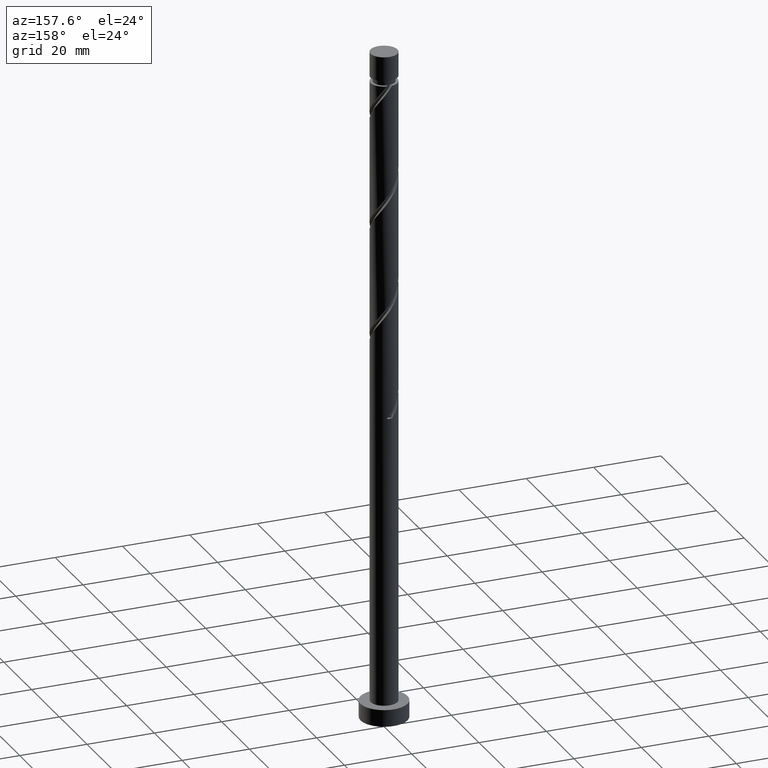
[diagram: clean part render]
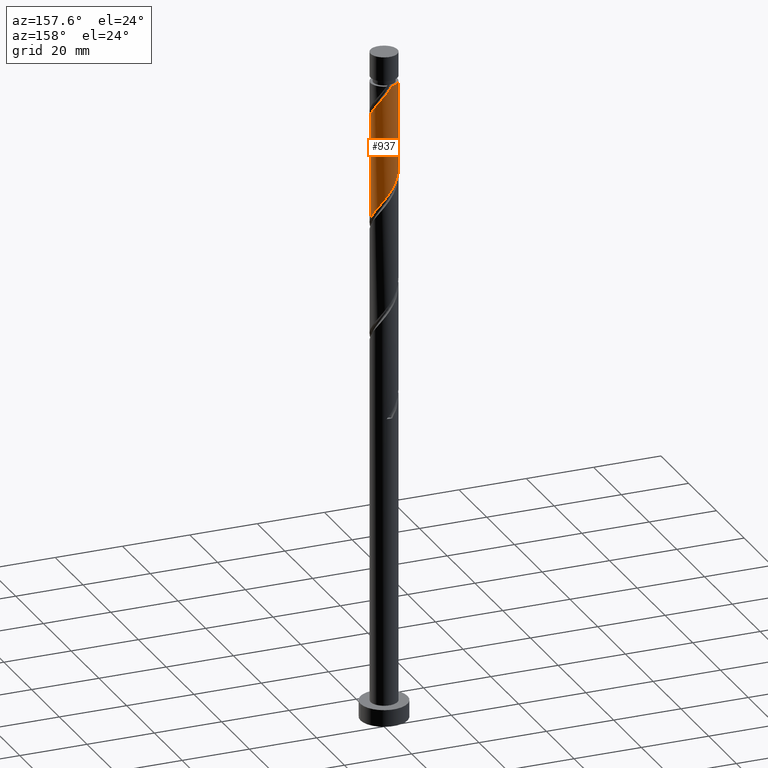
[diagram: same view with one face highlighted and labeled with its STEP entity id]
A machine part, auxiliary view. The second image highlights one B-rep face of the part: STEP entity #937.
In plain terms, the highlighted cylindrical surface (edge-blend (fillet) strip) has radius 4 mm, axis along (-0, -0, -1).
Its self-contained STEP definition (entity closure, byte-faithful):
#31 = CARTESIAN_POINT ( 'NONE',  ( -3.345617825659326083, 2.254808073111003619, 164.1163400501632736 ) ) ;
#39 = CARTESIAN_POINT ( 'NONE',  ( 0.7959899496852983480, 3.919999999999999929, 157.8663400501632168 ) ) ;
#46 = VECTOR ( 'NONE', #850, 1000.000000000000000 ) ;
#66 = CARTESIAN_POINT ( 'NONE',  ( 2.648031390325383150, 3.043886962058127477, 186.3385622723854453 ) ) ;
#93 = ORIENTED_EDGE ( 'NONE', *, *, #1147, .T. ) ;
#135 = VERTEX_POINT ( 'NONE', #1382 ) ;
#145 = CARTESIAN_POINT ( 'NONE',  ( 3.580411880364402499, 1.783437906669447015, 184.2552289390521878 ) ) ;
#175 = CARTESIAN_POINT ( 'NONE',  ( -3.999999999999989786, 0.000000000000000000, 191.1996733834965880 ) ) ;
#181 = DIRECTION ( 'NONE',  ( -0.000000000000000000, -0.000000000000000000, -1.000000000000000000 ) ) ;
#187 = CARTESIAN_POINT ( 'NONE',  ( -1.270652482415434825, 3.792814557677648413, 160.6441178279410167 ) ) ;
#194 = CARTESIAN_POINT ( 'NONE',  ( 3.992446597741900582, 0.2457034069343146943, 150.9218956057188166 ) ) ;
#253 = CYLINDRICAL_SURFACE ( 'NONE', #556, 4.000000000000000000 ) ;
#307 = CARTESIAN_POINT ( 'NONE',  ( 4.000000000000001776, 0.1229678066306891110, 150.7597370600681472 ) ) ;
#333 = LINE ( 'NONE', #1411, #46 ) ;
#415 = AXIS2_PLACEMENT_3D ( 'NONE', #807, #1505, #1384 ) ;
#435 = CARTESIAN_POINT ( 'NONE',  ( 3.043886962058128365, 2.648031390325374268, 154.3941178279410167 ) ) ;
#455 = CARTESIAN_POINT ( 'NONE',  ( -2.209008691072454234, 3.334708473430078701, 162.0330067168299308 ) ) ;
#463 = CARTESIAN_POINT ( 'NONE',  ( 0.2799121591427057298, 4.024794064930534709, 158.5607844946077023 ) ) ;
#472 = CARTESIAN_POINT ( 'NONE',  ( 1.270652482415439266, 3.792814557677653298, 188.4218956057188166 ) ) ;
#495 = VERTEX_POINT ( 'NONE', #175 ) ;
#556 = AXIS2_PLACEMENT_3D ( 'NONE', #796, #1328, #1241 ) ;
#561 = CARTESIAN_POINT ( 'NONE',  ( -3.815205935069464704, 1.312067740227889967, 165.5052289390521594 ) ) ;
#569 = CARTESIAN_POINT ( 'NONE',  ( -2.996824607992350842, 2.649347517584565104, 163.4218956057187881 ) ) ;
#581 = CARTESIAN_POINT ( 'NONE',  ( -4.000000000000000000, 0.000000000000000000, 200.0000000000000000 ) ) ;
#610 = ORIENTED_EDGE ( 'NONE', *, *, #1413, .F. ) ;
#667 = CARTESIAN_POINT ( 'NONE',  ( -0.7959899496853191092, 3.919999999999979057, 191.1996733834965312 ) ) ;
#683 = EDGE_CURVE ( 'NONE', #135, #1377, #1663, .T. ) ;
#698 = CARTESIAN_POINT ( 'NONE',  ( -4.000000000000000888, -1.973899546557860335E-15, 167.2632400387066696 ) ) ;
#708 = CARTESIAN_POINT ( 'NONE',  ( -3.919999999999999929, 0.7959899496852975709, 166.1996733834965596 ) ) ;
#716 = CARTESIAN_POINT ( 'NONE',  ( -2.648031390325376044, 3.043886962058126144, 162.7274511612743595 ) ) ;
#758 = CARTESIAN_POINT ( 'NONE',  ( 2.209008691072459118, 3.334708473430083142, 187.0330067168299308 ) ) ;
#762 =( BOUNDED_CURVE ( )  B_SPLINE_CURVE ( 2, ( #1097, #1488, #1084, #1365, #145, #776, #877, #66, #758, #1162, #472, #1307, #1049, #898, #1449 ),
 .UNSPECIFIED., .F., .T. ) 
 B_SPLINE_CURVE_WITH_KNOTS ( ( 3, 2, 2, 2, 2, 2, 2, 3 ),
 ( 0.6795317669814462391, 0.6875000000000000000, 0.6979166666666668517, 0.7083333333333333703, 0.7187500000000001110, 0.7291666666666668517, 0.7395833333333334814, 0.7500000000000002220 ),
 .UNSPECIFIED. ) 
 CURVE ( )  GEOMETRIC_REPRESENTATION_ITEM ( )  RATIONAL_B_SPLINE_CURVE ( ( 0.9062941362546459434, 0.9031415850403502477, 0.9090909090909254919, 0.9013135103398440817, 0.9090909090909254919, 0.9013135103398440817, 0.9090909090909254919, 0.9013135103398440817, 0.9090909090909254919, 0.9013135103398440817, 0.9090909090909254919, 0.9013135103398440817, 0.9090909090909254919, 0.9013135103398438597, 0.9090909090909257140 ) ) 
 REPRESENTATION_ITEM ( '' )  );
#776 = CARTESIAN_POINT ( 'NONE',  ( 3.345617825659332301, 2.254808073111004063, 184.9496733834965596 ) ) ;
#796 = CARTESIAN_POINT ( 'NONE',  ( 0.000000000000000000, 0.000000000000000000, 200.0000000000000000 ) ) ;
#807 = CARTESIAN_POINT ( 'NONE',  ( 0.000000000000000000, 0.000000000000000000, 191.1996733834965880 ) ) ;
#850 = DIRECTION ( 'NONE',  ( -0.000000000000000000, -0.000000000000000000, -1.000000000000000000 ) ) ;
#854 = CARTESIAN_POINT ( 'NONE',  ( 4.000000000000000000, 5.174009417492573212E-15, 150.5965733720399555 ) ) ;
#862 = CARTESIAN_POINT ( 'NONE',  ( -0.2457034069343165539, 3.992446597741900582, 159.2552289390521310 ) ) ;
#877 = CARTESIAN_POINT ( 'NONE',  ( 2.996824607992358391, 2.649347517584565992, 185.6441178279409883 ) ) ;
#898 = CARTESIAN_POINT ( 'NONE',  ( -0.2799121591427126132, 4.024794064930541815, 190.5052289390521594 ) ) ;
#906 = ORIENTED_EDGE ( 'NONE', *, *, #683, .F. ) ;
#937 = ADVANCED_FACE ( 'NONE', ( #1340 ), #253, .T. ) ;
#973 = CARTESIAN_POINT ( 'NONE',  ( 3.334708473430078701, 2.209008691072452457, 153.6996733834966165 ) ) ;
#984 = CARTESIAN_POINT ( 'NONE',  ( -1.769985991819531090, 3.625529984802031702, 161.3385622723854453 ) ) ;
#996 = CARTESIAN_POINT ( 'NONE',  ( -0.7713189730113390041, 3.960099130553264235, 159.9496733834965880 ) ) ;
#1003 = CARTESIAN_POINT ( 'NONE',  ( 1.783437906669449236, 3.580411880364393618, 156.4774511612743879 ) ) ;
#1020 = ORIENTED_EDGE ( 'NONE', *, *, #1120, .F. ) ;
#1022 = EDGE_CURVE ( 'NONE', #495, #1315, #1188, .T. ) ;
#1045 = ORIENTED_EDGE ( 'NONE', *, *, #1022, .T. ) ;
#1049 = CARTESIAN_POINT ( 'NONE',  ( 0.2457034069343209393, 3.992446597741906356, 189.8107844946077591 ) ) ;
#1067 = EDGE_LOOP ( 'NONE', ( #610, #93, #906, #1020, #1045 ) ) ;
#1084 = CARTESIAN_POINT ( 'NONE',  ( 3.920000000000006146, 0.7959899496852973488, 182.8663400501633021 ) ) ;
#1097 = CARTESIAN_POINT ( 'NONE',  ( 4.000000000000006217, -7.925505755118632701E-16, 181.8027733949532490 ) ) ;
#1114 = CARTESIAN_POINT ( 'NONE',  ( 2.254808073111005395, 3.345617825659324751, 155.7830067168299308 ) ) ;
#1120 = EDGE_CURVE ( 'NONE', #495, #135, #1546, .T. ) ;
#1123 = CARTESIAN_POINT ( 'NONE',  ( 3.960099130553264235, 0.7713189730113365616, 151.6163400501632736 ) ) ;
#1133 = CARTESIAN_POINT ( 'NONE',  ( -3.999999999999999112, 0.4020151261036933876, 166.7298136695173980 ) ) ;
#1147 = EDGE_CURVE ( 'NONE', #1493, #1377, #333, .T. ) ;
#1151 = CARTESIAN_POINT ( 'NONE',  ( 4.000000000000006217, -7.925505755118632701E-16, 181.8027733949532205 ) ) ;
#1162 = CARTESIAN_POINT ( 'NONE',  ( 1.769985991819536419, 3.625529984802036143, 187.7274511612743595 ) ) ;
#1188 = CIRCLE ( 'NONE', #415, 3.999999999999989786 ) ;
#1211 = CARTESIAN_POINT ( 'NONE',  ( 4.000000000000000000, 5.174009417492574001E-15, 150.5965733720399555 ) ) ;
#1241 = DIRECTION ( 'NONE',  ( -1.000000000000000000, 0.000000000000000000, 0.000000000000000000 ) ) ;
#1245 = CARTESIAN_POINT ( 'NONE',  ( 1.312067740227892854, 3.815205935069463372, 157.1718956057188166 ) ) ;
#1252 = CARTESIAN_POINT ( 'NONE',  ( -3.580411880364394506, 1.783437906669447015, 164.8107844946077307 ) ) ;
#1260 = CARTESIAN_POINT ( 'NONE',  ( 3.625529984802033034, 1.769985991819528426, 153.0052289390521025 ) ) ;
#1307 = CARTESIAN_POINT ( 'NONE',  ( 0.7713189730113432230, 3.960099130553270452, 189.1163400501632168 ) ) ;
#1315 = VERTEX_POINT ( 'NONE', #667 ) ;
#1328 = DIRECTION ( 'NONE',  ( -0.000000000000000000, -0.000000000000000000, -1.000000000000000000 ) ) ;
#1340 = FACE_OUTER_BOUND ( 'NONE', #1067, .T. ) ;
#1365 = CARTESIAN_POINT ( 'NONE',  ( 3.815205935069471810, 1.312067740227889523, 183.5607844946077023 ) ) ;
#1377 = VERTEX_POINT ( 'NONE', #1211 ) ;
#1382 = CARTESIAN_POINT ( 'NONE',  ( -4.000000000000000888, -1.973899546557860729E-15, 167.2632400387066696 ) ) ;
#1384 = DIRECTION ( 'NONE',  ( -1.000000000000000000, 0.000000000000000000, 0.000000000000000000 ) ) ;
#1411 = CARTESIAN_POINT ( 'NONE',  ( 4.000000000000000000, 4.898587196589412829E-16, 200.0000000000000000 ) ) ;
#1413 = EDGE_CURVE ( 'NONE', #1493, #1315, #762, .T. ) ;
#1449 = CARTESIAN_POINT ( 'NONE',  ( -0.7959899496853189982, 3.919999999999979057, 191.1996733834965312 ) ) ;
#1488 = CARTESIAN_POINT ( 'NONE',  ( 4.000000000000006217, 0.4020151261036833956, 182.3361997641424637 ) ) ;
#1493 = VERTEX_POINT ( 'NONE', #1151 ) ;
#1505 = DIRECTION ( 'NONE',  ( -0.000000000000000000, -0.000000000000000000, -1.000000000000000000 ) ) ;
#1517 = CARTESIAN_POINT ( 'NONE',  ( 3.792814557677649301, 1.270652482415432383, 152.3107844946077023 ) ) ;
#1546 = LINE ( 'NONE', #581, #1690 ) ;
#1651 = CARTESIAN_POINT ( 'NONE',  ( 2.649347517584566436, 2.996824607992349954, 155.0885622723855022 ) ) ;
#1663 =( BOUNDED_CURVE ( )  B_SPLINE_CURVE ( 2, ( #698, #1133, #708, #561, #1252, #31, #569, #716, #455, #984, #187, #996, #862, #463, #39, #1245, #1003, #1114, #1651, #435, #973, #1260, #1517, #1123, #194, #307, #854 ),
 .UNSPECIFIED., .F., .T. ) 
 B_SPLINE_CURVE_WITH_KNOTS ( ( 3, 2, 2, 2, 2, 2, 2, 2, 2, 2, 2, 2, 2, 3 ),
 ( 0.4295317669814464057, 0.4375000000000000000, 0.4479166666666666852, 0.4583333333333333148, 0.4687500000000000000, 0.4791666666666666852, 0.4895833333333333148, 0.5000000000000000000, 0.5104166666666666297, 0.5208333333333333703, 0.5312500000000000000, 0.5416666666666666297, 0.5520833333333333703, 0.5545317669814463502 ),
 .UNSPECIFIED. ) 
 CURVE ( )  GEOMETRIC_REPRESENTATION_ITEM ( )  RATIONAL_B_SPLINE_CURVE ( ( 0.9062941362546402813, 0.9031415850403446965, 0.9090909090909198298, 0.9013135103398383086, 0.9090909090909198298, 0.9013135103398383086, 0.9090909090909198298, 0.9013135103398383086, 0.9090909090909198298, 0.9013135103398383086, 0.9090909090909198298, 0.9013135103398383086, 0.9090909090909198298, 0.9013135103398383086, 0.9090909090909198298, 0.9013135103398383086, 0.9090909090909198298, 0.9013135103398383086, 0.9090909090909198298, 0.9013135103398383086, 0.9090909090909198298, 0.9013135103398383086, 0.9090909090909198298, 0.9013135103398383086, 0.9090909090909198298, 0.9072628343904135528, 0.9062941362546401702 ) ) 
 REPRESENTATION_ITEM ( '' )  );
#1690 = VECTOR ( 'NONE', #181, 1000.000000000000000 ) ;